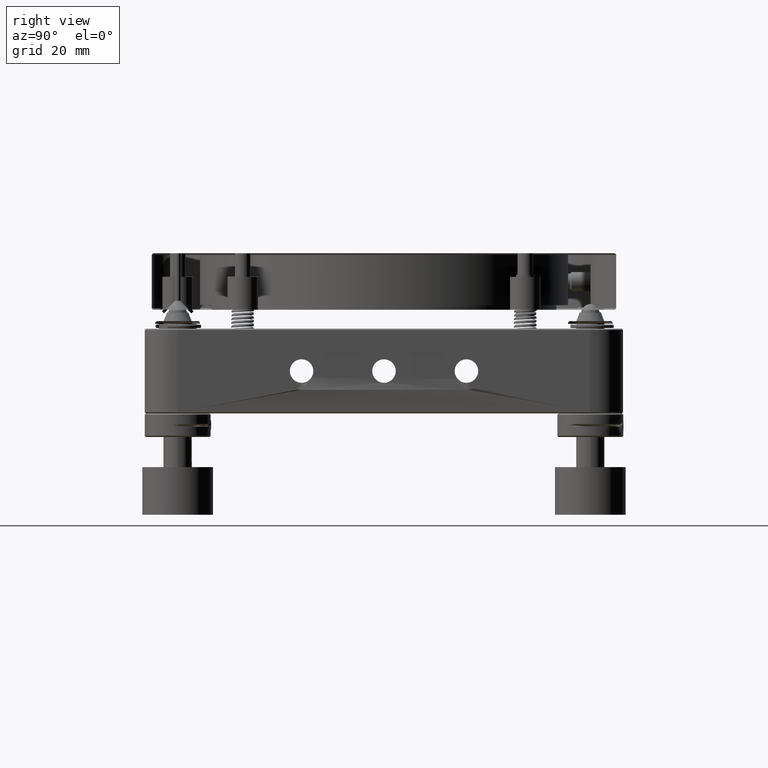
[diagram: clean part render]
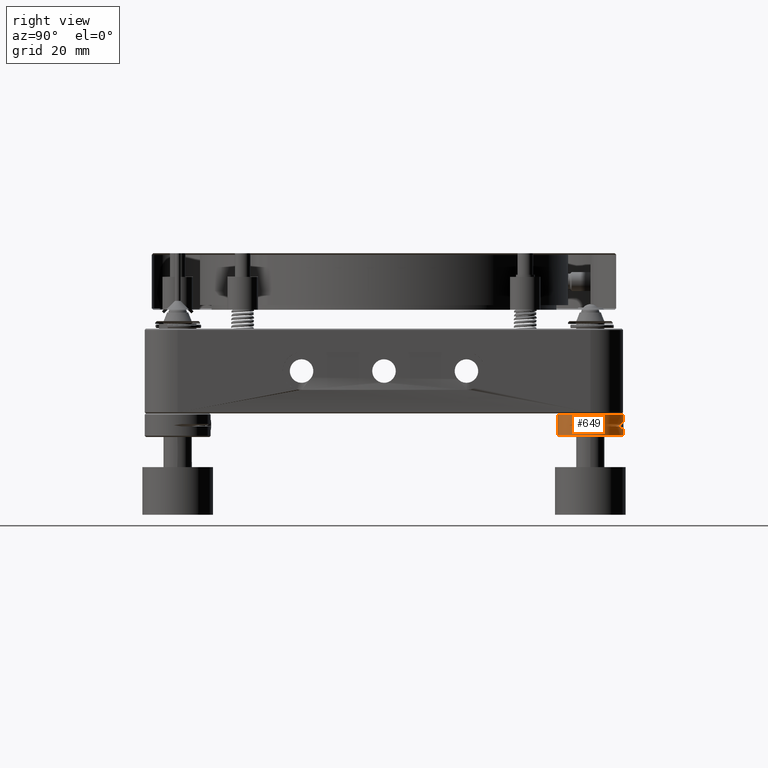
[diagram: same view with one face highlighted and labeled with its STEP entity id]
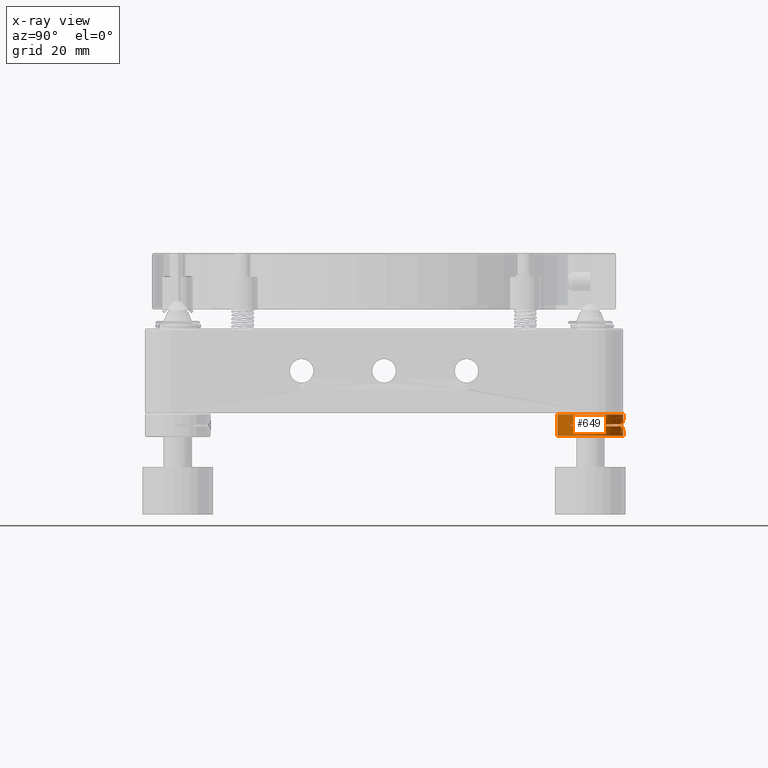
[diagram: x-ray of the same camera — body ghosted, the highlighted face saturated]
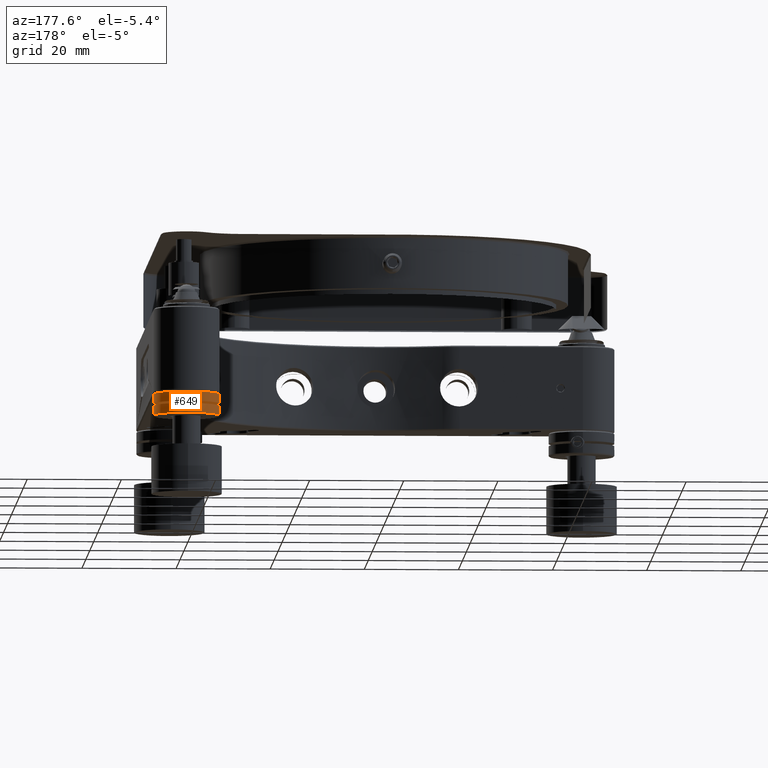
[diagram: same view with one face highlighted and labeled with its STEP entity id]
A machine part, right view. The second image highlights one B-rep face of the part: STEP entity #649.
The next image is the same camera in x-ray: the body ghosted, the highlighted face saturated — about 0% of this face is hidden behind the body in this view.
A second angle (auxiliary view) of the same face is appended — the face is thin or edge-on in the first view.
In plain terms, the highlighted cylindrical surface (bore or boss wall) has radius 7 mm, axis along (0, 0, -1).
Its self-contained STEP definition (entity closure, byte-faithful):
#542 = CARTESIAN_POINT ( 'NONE',  ( 43.50080503924974096, 50.79511053835802414, -12.74075971853057254 ) ) ;
#568 = ORIENTED_EDGE ( 'NONE', *, *, #11914, .T. ) ;
#574 = DIRECTION ( 'NONE',  ( -1.303525582291056295E-15, -7.735331618950627164E-15, 1.000000000000000000 ) ) ;
#623 = CARTESIAN_POINT ( 'NONE',  ( 44.07182845190767750, 50.80000000000017479, -10.27137603536509580 ) ) ;
#649 = ADVANCED_FACE ( 'NONE', ( #14230, #11579, #4939 ), #9008, .T. ) ;
#714 = CARTESIAN_POINT ( 'NONE',  ( 42.57715191350086315, 50.69284407373092449, -10.96360966847798935 ) ) ;
#801 = CARTESIAN_POINT ( 'NONE',  ( 42.83779738674037674, 50.73460943352553443, -10.59757215528102847 ) ) ;
#834 = AXIS2_PLACEMENT_3D ( 'NONE', #14709, #1178, #7722 ) ;
#1102 = ORIENTED_EDGE ( 'NONE', *, *, #10295, .T. ) ;
#1114 = EDGE_CURVE ( 'NONE', #3668, #3668, #11088, .T. ) ;
#1178 = DIRECTION ( 'NONE',  ( 1.303525582291056295E-15, 7.735331618950627164E-15, -1.000000000000000000 ) ) ;
#1203 = AXIS2_PLACEMENT_3D ( 'NONE', #10135, #16878, #11381 ) ;
#1645 = EDGE_LOOP ( 'NONE', ( #10995 ) ) ;
#1801 = CARTESIAN_POINT ( 'NONE',  ( 44.94111409880498798, 50.70636363171755789, -11.74999999999981881 ) ) ;
#1845 = EDGE_CURVE ( 'NONE', #8302, #9028, #13918, .T. ) ;
#2054 = AXIS2_PLACEMENT_3D ( 'NONE', #2205, #6361, #4694 ) ;
#2126 = CARTESIAN_POINT ( 'NONE',  ( 42.52197259088090675, 50.68241156892408839, -11.10187627415582412 ) ) ;
#2185 = VERTEX_POINT ( 'NONE', #13780 ) ;
#2205 = CARTESIAN_POINT ( 'NONE',  ( 43.79999999999999005, 43.80000000000018190, -11.24999999999980815 ) ) ;
#2303 = CARTESIAN_POINT ( 'NONE',  ( 42.73814361068095735, 50.71947381495763807, -10.70679069745405521 ) ) ;
#2827 = DIRECTION ( 'NONE',  ( 1.303525582291056295E-15, 7.735331618950627164E-15, -1.000000000000000000 ) ) ;
#2962 = B_SPLINE_CURVE_WITH_KNOTS ( 'NONE', 3,
 ( #10259, #7345, #11501, #15663, #623, #15488 ),
 .UNSPECIFIED., .F., .F.,
 ( 4, 2, 4 ),
 ( 0.000000000000000000, 0.5000000000000000000, 1.000000000000000000 ),
 .UNSPECIFIED. ) ;
#3125 = CARTESIAN_POINT ( 'NONE',  ( 44.43630581655514789, 50.77179004007967933, -12.53038971851827554 ) ) ;
#3668 = VERTEX_POINT ( 'NONE', #11537 ) ;
#4460 = CARTESIAN_POINT ( 'NONE',  ( 44.06742856067984349, 50.79605314417383255, -12.70672011899712572 ) ) ;
#4641 = CARTESIAN_POINT ( 'NONE',  ( 43.79999999999999005, 43.80000000000018190, -11.24999999999958611 ) ) ;
#4694 = DIRECTION ( 'NONE',  ( -1.982541115402067674E-15, 1.000000000000000000, 7.682346822183012088E-15 ) ) ;
#4701 = CARTESIAN_POINT ( 'NONE',  ( 43.79999999999999005, 50.80000000000016769, -10.25288310728589458 ) ) ;
#4852 = DIRECTION ( 'NONE',  ( 1.303525582291056295E-15, 7.735331618950627164E-15, -1.000000000000000000 ) ) ;
#4937 = ORIENTED_EDGE ( 'NONE', *, *, #1845, .T. ) ;
#4939 = FACE_OUTER_BOUND ( 'NONE', #12412, .T. ) ;
#5552 = CARTESIAN_POINT ( 'NONE',  ( 43.79999999999999005, 50.80000000000016769, -10.25288310728589458 ) ) ;
#5684 = CARTESIAN_POINT ( 'NONE',  ( 42.49180431154443482, 50.67667245408044607, -11.74999999999981526 ) ) ;
#5762 = CARTESIAN_POINT ( 'NONE',  ( 42.73797989202184766, 50.71944493514669006, -12.29290557990499089 ) ) ;
#5790 = AXIS2_PLACEMENT_3D ( 'NONE', #17001, #14330, #13979 ) ;
#6152 = EDGE_CURVE ( 'NONE', #14632, #14632, #8614, .T. ) ;
#6178 = EDGE_CURVE ( 'NONE', #9028, #6535, #2962, .T. ) ;
#6361 = DIRECTION ( 'NONE',  ( -1.303525582291056295E-15, -7.735331618950627164E-15, 1.000000000000000000 ) ) ;
#6535 = VERTEX_POINT ( 'NONE', #5552 ) ;
#7050 = VERTEX_POINT ( 'NONE', #10695 ) ;
#7085 = CARTESIAN_POINT ( 'NONE',  ( 42.83816860256159487, 50.73466201419852695, -12.40277943359519597 ) ) ;
#7345 = CARTESIAN_POINT ( 'NONE',  ( 44.88632408094671433, 50.71541639308166793, -10.98214212032262083 ) ) ;
#7609 = CARTESIAN_POINT ( 'NONE',  ( 43.64881939212516215, 50.80000000000017479, -10.24259804665747531 ) ) ;
#7722 = DIRECTION ( 'NONE',  ( 0.000000000000000000, 1.000000000000000000, 7.682346822183012088E-15 ) ) ;
#7753 = VERTEX_POINT ( 'NONE', #10939 ) ;
#7904 = EDGE_CURVE ( 'NONE', #7050, #2185, #8639, .T. ) ;
#8107 = ORIENTED_EDGE ( 'NONE', *, *, #6178, .T. ) ;
#8165 = ORIENTED_EDGE ( 'NONE', *, *, #15984, .T. ) ;
#8205 = ORIENTED_EDGE ( 'NONE', *, *, #6152, .F. ) ;
#8230 = ORIENTED_EDGE ( 'NONE', *, *, #7904, .T. ) ;
#8302 = VERTEX_POINT ( 'NONE', #14325 ) ;
#8414 = CARTESIAN_POINT ( 'NONE',  ( 42.57761699912658315, 50.69292279946996160, -12.03717472435642222 ) ) ;
#8460 = CIRCLE ( 'NONE', #834, 6.999999999999992006 ) ;
#8518 = CARTESIAN_POINT ( 'NONE',  ( 44.74548953602442936, 50.73894915371234049, -12.25992030126122856 ) ) ;
#8614 = CIRCLE ( 'NONE', #5790, 6.999999999915337945 ) ;
#8639 = CIRCLE ( 'NONE', #13453, 6.999999999999992006 ) ;
#8848 = AXIS2_PLACEMENT_3D ( 'NONE', #12732, #4852, #14403 ) ;
#9008 = CYLINDRICAL_SURFACE ( 'NONE', #8848, 6.999999999999992006 ) ;
#9028 = VERTEX_POINT ( 'NONE', #11724 ) ;
#9110 = CARTESIAN_POINT ( 'NONE',  ( 43.50022088399731501, 50.79508234223393259, -10.25937149956199335 ) ) ;
#9848 = CARTESIAN_POINT ( 'NONE',  ( 44.32219001960722693, 50.78166135060948250, -12.60094777026338875 ) ) ;
#10135 = CARTESIAN_POINT ( 'NONE',  ( 43.79999999999999005, 43.80000000000016769, -9.249999999951782570 ) ) ;
#10259 = CARTESIAN_POINT ( 'NONE',  ( 44.94111409880496666, 50.70636363171755079, -11.24999999999986500 ) ) ;
#10295 = EDGE_CURVE ( 'NONE', #7753, #9028, #15106, .T. ) ;
#10695 = CARTESIAN_POINT ( 'NONE',  ( 42.50328283464846635, 49.72977639878872225, -11.49999999999930367 ) ) ;
#10737 = EDGE_CURVE ( 'NONE', #6535, #7050, #11317, .T. ) ;
#10744 = CARTESIAN_POINT ( 'NONE',  ( 43.79999999999996163, 36.80000000008476491, -13.75000000007275958 ) ) ;
#10939 = CARTESIAN_POINT ( 'NONE',  ( 43.79999999999999005, 50.80000000000018190, -12.74711689271392778 ) ) ;
#10995 = ORIENTED_EDGE ( 'NONE', *, *, #1114, .T. ) ;
#11074 = CARTESIAN_POINT ( 'NONE',  ( 43.21094868779236009, 50.77668313885418883, -12.65366975155797746 ) ) ;
#11088 = CIRCLE ( 'NONE', #1203, 6.999999999999992006 ) ;
#11317 = B_SPLINE_CURVE_WITH_KNOTS ( 'NONE', 3,
 ( #4701, #7609, #9110, #14243, #14415, #801, #2303, #714, #2126, #15489 ),
 .UNSPECIFIED., .F., .F.,
 ( 4, 2, 2, 2, 4 ),
 ( 0.000000000000000000, 0.2500000000000000000, 0.5000000000000000000, 0.7500000000000000000, 1.000000000000000000 ),
 .UNSPECIFIED. ) ;
#11381 = DIRECTION ( 'NONE',  ( 0.000000000000000000, 1.000000000000000000, 7.682346822183012088E-15 ) ) ;
#11501 = CARTESIAN_POINT ( 'NONE',  ( 44.74416931817790299, 50.73910376814590251, -10.73876728915884016 ) ) ;
#11509 = EDGE_LOOP ( 'NONE', ( #8107, #14630, #8230, #568, #17163, #1102, #8165, #4937 ) ) ;
#11537 = CARTESIAN_POINT ( 'NONE',  ( 43.79999999999999005, 50.80000000000016058, -9.249999999951729279 ) ) ;
#11579 = FACE_BOUND ( 'NONE', #11509, .T. ) ;
#11724 = CARTESIAN_POINT ( 'NONE',  ( 44.95259262190685234, 49.75946757642444851, -11.49999999999962697 ) ) ;
#11914 = EDGE_CURVE ( 'NONE', #2185, #7050, #8460, .T. ) ;
#12412 = EDGE_LOOP ( 'NONE', ( #8205 ) ) ;
#12656 = CARTESIAN_POINT ( 'NONE',  ( 43.79999999999999005, 50.80000000000018190, -12.74711689271392778 ) ) ;
#12690 = DIRECTION ( 'NONE',  ( 0.000000000000000000, 1.000000000000000000, 7.682346822183012088E-15 ) ) ;
#12732 = CARTESIAN_POINT ( 'NONE',  ( 43.79999999999996163, 43.80000000000001137, 10.60000000000015064 ) ) ;
#13199 = EDGE_CURVE ( 'NONE', #7050, #7753, #15275, .T. ) ;
#13453 = AXIS2_PLACEMENT_3D ( 'NONE', #4641, #574, #12690 ) ;
#13727 = CARTESIAN_POINT ( 'NONE',  ( 43.64893966349248444, 50.80000000000019611, -12.75739377108712702 ) ) ;
#13780 = CARTESIAN_POINT ( 'NONE',  ( 38.49303744932871751, 39.23533698004217740, -11.49999999999981526 ) ) ;
#13912 = CARTESIAN_POINT ( 'NONE',  ( 44.88643861783180000, 50.71539746855623321, -12.01729793083249476 ) ) ;
#13918 = CIRCLE ( 'NONE', #2054, 6.999999999999992006 ) ;
#13979 = DIRECTION ( 'NONE',  ( 0.000000000000000000, -1.000000000000000000, -7.682346822275917814E-15 ) ) ;
#14071 = CARTESIAN_POINT ( 'NONE',  ( 43.07854332752749826, 50.76377463434961612, -12.58611352219862312 ) ) ;
#14093 = CARTESIAN_POINT ( 'NONE',  ( 43.79999999999999005, 50.80000000000018190, -12.74711689271392778 ) ) ;
#14230 = FACE_OUTER_BOUND ( 'NONE', #1645, .T. ) ;
#14243 = CARTESIAN_POINT ( 'NONE',  ( 43.21067215963195451, 50.77665659106074969, -10.34645776235935521 ) ) ;
#14325 = CARTESIAN_POINT ( 'NONE',  ( 49.21605490328127530, 39.36532421876852084, -11.49999999999986322 ) ) ;
#14330 = DIRECTION ( 'NONE',  ( 1.393676011140944838E-15, 7.699805766367063557E-15, -1.000000000000000000 ) ) ;
#14403 = DIRECTION ( 'NONE',  ( 0.000000000000000000, 1.000000000000000000, 7.682346822183012088E-15 ) ) ;
#14415 = CARTESIAN_POINT ( 'NONE',  ( 43.07804706776269654, 50.76372212456377042, -10.41419676030894159 ) ) ;
#14630 = ORIENTED_EDGE ( 'NONE', *, *, #10737, .T. ) ;
#14632 = VERTEX_POINT ( 'NONE', #10744 ) ;
#14709 = CARTESIAN_POINT ( 'NONE',  ( 43.79999999999999005, 43.80000000000018900, -11.74999999999978861 ) ) ;
#14951 = CARTESIAN_POINT ( 'NONE',  ( 43.79999999999999005, 43.80000000000018900, -11.74999999999987566 ) ) ;
#15032 = DIRECTION ( 'NONE',  ( 0.000000000000000000, 1.000000000000000000, 7.682346822183012088E-15 ) ) ;
#15106 = B_SPLINE_CURVE_WITH_KNOTS ( 'NONE', 3,
 ( #14093, #16585, #4460, #9848, #3125, #8518, #13912, #1801 ),
 .UNSPECIFIED., .F., .F.,
 ( 4, 2, 2, 4 ),
 ( 0.000000000000000000, 0.2500000000000005551, 0.5000000000000011102, 1.000000000000000000 ),
 .UNSPECIFIED. ) ;
#15275 = B_SPLINE_CURVE_WITH_KNOTS ( 'NONE', 3,
 ( #5684, #16740, #8414, #5762, #7085, #14071, #11074, #542, #13727, #12656 ),
 .UNSPECIFIED., .F., .F.,
 ( 4, 2, 2, 2, 4 ),
 ( 0.000000000000000000, 0.2500000000000000000, 0.5000000000000000000, 0.7500000000000000000, 1.000000000000000000 ),
 .UNSPECIFIED. ) ;
#15488 = CARTESIAN_POINT ( 'NONE',  ( 43.79999999999999005, 50.80000000000016769, -10.25288310728589458 ) ) ;
#15489 = CARTESIAN_POINT ( 'NONE',  ( 42.49180431154372428, 50.67667245408029686, -11.24999999999953459 ) ) ;
#15663 = CARTESIAN_POINT ( 'NONE',  ( 44.33359909473188054, 50.78268492863497841, -10.37992180891503580 ) ) ;
#15984 = EDGE_CURVE ( 'NONE', #9028, #8302, #16405, .T. ) ;
#16405 = CIRCLE ( 'NONE', #16695, 6.999999999999992006 ) ;
#16585 = CARTESIAN_POINT ( 'NONE',  ( 43.93557065354386992, 50.80000000000018900, -12.73789380245957403 ) ) ;
#16695 = AXIS2_PLACEMENT_3D ( 'NONE', #14951, #2827, #15032 ) ;
#16740 = CARTESIAN_POINT ( 'NONE',  ( 42.52198535954204317, 50.68241399799243396, -11.89818641890123985 ) ) ;
#16878 = DIRECTION ( 'NONE',  ( 1.303525582291056295E-15, 7.735331618950627164E-15, -1.000000000000000000 ) ) ;
#17001 = CARTESIAN_POINT ( 'NONE',  ( 43.79999999999996163, 43.80000000000010374, -13.75000000007270629 ) ) ;
#17163 = ORIENTED_EDGE ( 'NONE', *, *, #13199, .T. ) ;